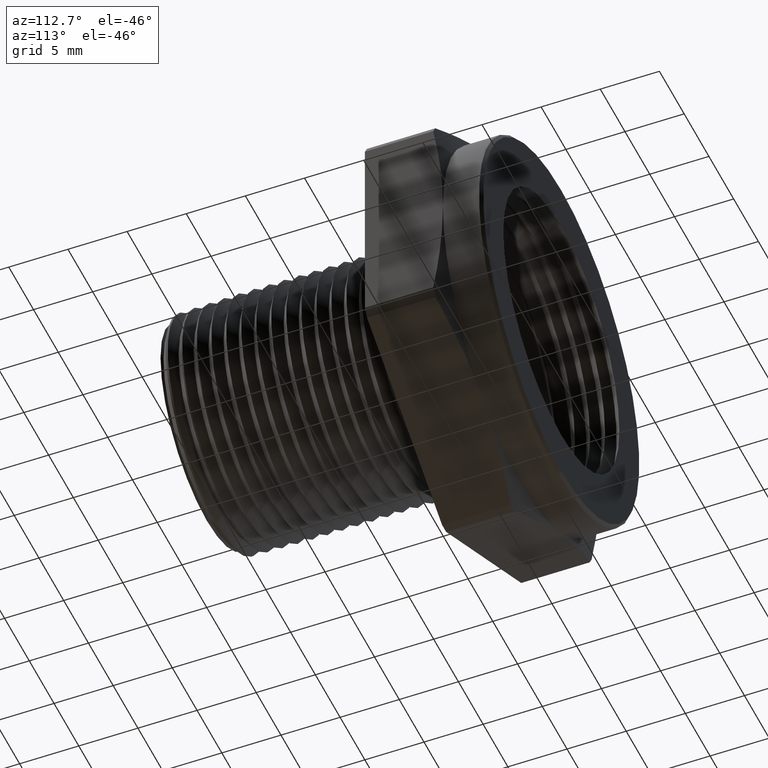
[diagram: clean part render]
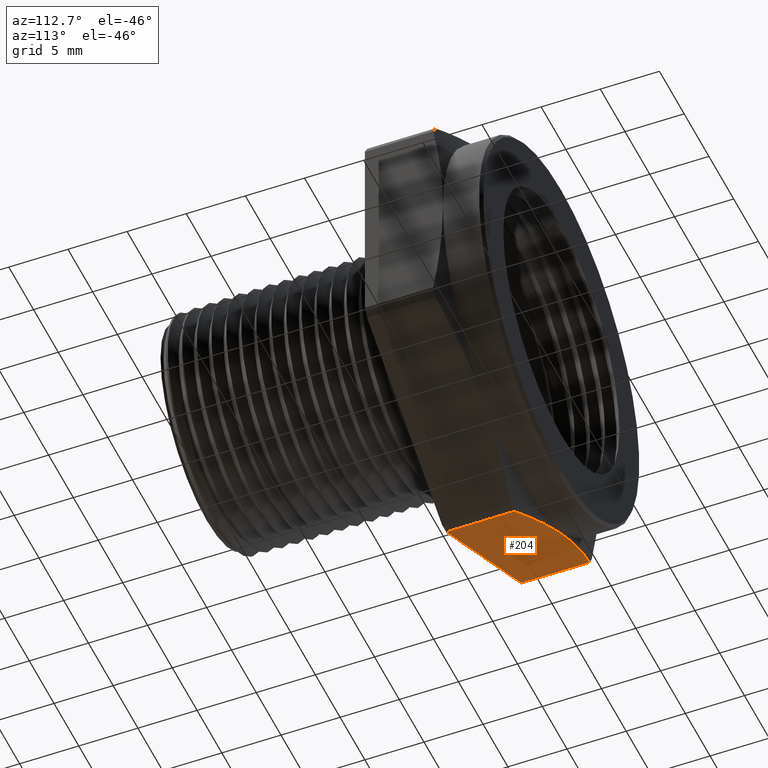
[diagram: same view with one face highlighted and labeled with its STEP entity id]
A machine part, auxiliary view. The second image highlights one B-rep face of the part: STEP entity #204.
In plain terms, the highlighted planar face has unit normal (-0.5, 0, -0.866).
Its self-contained STEP definition (entity closure, byte-faithful):
#115 = VERTEX_POINT ( 'NONE', #1240 ) ;
#117 = EDGE_CURVE ( 'NONE', #115, #118, #1239, .T. ) ;
#118 = VERTEX_POINT ( 'NONE', #1235 ) ;
#127 = ORIENTED_EDGE ( 'NONE', *, *, #128, .T. ) ;
#128 = EDGE_CURVE ( 'NONE', #115, #129, #1271, .T. ) ;
#129 = VERTEX_POINT ( 'NONE', #1270 ) ;
#130 = ORIENTED_EDGE ( 'NONE', *, *, #131, .T. ) ;
#131 = EDGE_CURVE ( 'NONE', #129, #544, #1263, .T. ) ;
#185 = ORIENTED_EDGE ( 'NONE', *, *, #551, .F. ) ;
#186 = ORIENTED_EDGE ( 'NONE', *, *, #187, .F. ) ;
#187 = EDGE_CURVE ( 'NONE', #118, #549, #1374, .T. ) ;
#204 = ADVANCED_FACE ( 'NONE', ( #1446 ), #1445, .T. ) ;
#205 = EDGE_LOOP ( 'NONE', ( #206, #127, #130, #185, #186 ) ) ;
#206 = ORIENTED_EDGE ( 'NONE', *, *, #117, .F. ) ;
#544 = VERTEX_POINT ( 'NONE', #1858 ) ;
#549 = VERTEX_POINT ( 'NONE', #1910 ) ;
#551 = EDGE_CURVE ( 'NONE', #549, #544, #1909, .T. ) ;
#1235 = CARTESIAN_POINT ( 'NONE',  ( -0.6136359489411817900, 0.7900000000000000400, -0.3731784588733055900 ) ) ;
#1236 = DIRECTION ( 'NONE',  ( -0.0000000000000000000, -1.000000000000000000, -0.0000000000000000000 ) ) ;
#1237 = VECTOR ( 'NONE', #1236, 39.37007874015748100 ) ;
#1238 = CARTESIAN_POINT ( 'NONE',  ( -0.6136359489411816700, 0.0000000000000000000, -0.3731784588733055300 ) ) ;
#1239 = LINE ( 'NONE', #1238, #1237 ) ;
#1240 = CARTESIAN_POINT ( 'NONE',  ( -0.6136359489411817900, 1.017497825337721200, -0.3731784588733055900 ) ) ;
#1257 = CARTESIAN_POINT ( 'NONE',  ( -0.01636405105881831600, 1.017497825337721200, -0.7180135498950869200 ) ) ;
#1258 = CARTESIAN_POINT ( 'NONE',  ( -0.06613670921568201600, 1.027541488170656600, -0.6892772923099382800 ) ) ;
#1259 = CARTESIAN_POINT ( 'NONE',  ( -0.1159093673725455600, 1.035645883142550800, -0.6605410347247897600 ) ) ;
#1260 = CARTESIAN_POINT ( 'NONE',  ( -0.2154546836862728800, 1.046689541038624100, -0.6030685195544931400 ) ) ;
#1261 = CARTESIAN_POINT ( 'NONE',  ( -0.2652273418431364500, 1.049599999999999900, -0.5743322619693445000 ) ) ;
#1262 = CARTESIAN_POINT ( 'NONE',  ( -0.3149999999999998900, 1.049600000000000100, -0.5455960043841960900 ) ) ;
#1263 = B_SPLINE_CURVE_WITH_KNOTS ( 'NONE', 3,
 ( #1262, #1261, #1260, #1259, #1258, #1257 ),
 .UNSPECIFIED., .F., .F.,
 ( 4, 2, 4 ),
 ( 0.008759042252060918900, 0.01313844790803754000, 0.01751785356401416200 ),
 .UNSPECIFIED. ) ;
#1264 = CARTESIAN_POINT ( 'NONE',  ( -0.3149999999999998900, 1.049600000000000100, -0.5455960043841960900 ) ) ;
#1265 = CARTESIAN_POINT ( 'NONE',  ( -0.3647726581568636600, 1.049600000000000100, -0.5168597467990478900 ) ) ;
#1266 = CARTESIAN_POINT ( 'NONE',  ( -0.4145453163137271000, 1.046689541038624300, -0.4881234892138993100 ) ) ;
#1267 = CARTESIAN_POINT ( 'NONE',  ( -0.5140906326274545800, 1.035645883142551000, -0.4306509740436025900 ) ) ;
#1268 = CARTESIAN_POINT ( 'NONE',  ( -0.5638632907843180700, 1.027541488170656200, -0.4019147164584540600 ) ) ;
#1269 = CARTESIAN_POINT ( 'NONE',  ( -0.6136359489411817900, 1.017497825337721200, -0.3731784588733055900 ) ) ;
#1270 = CARTESIAN_POINT ( 'NONE',  ( -0.3149999999999998900, 1.049600000000000100, -0.5455960043841960900 ) ) ;
#1271 = B_SPLINE_CURVE_WITH_KNOTS ( 'NONE', 3,
 ( #1269, #1268, #1267, #1266, #1265, #1264 ),
 .UNSPECIFIED., .F., .F.,
 ( 4, 2, 4 ),
 ( 2.309401076763871700E-007, 0.004379636596084297500, 0.008759042252060918900 ),
 .UNSPECIFIED. ) ;
#1368 = DIRECTION ( 'NONE',  ( 0.8660254037844386000, 0.0000000000000000000, -0.5000000000000000000 ) ) ;
#1369 = VECTOR ( 'NONE', #1368, 39.37007874015748900 ) ;
#1370 = CARTESIAN_POINT ( 'NONE',  ( -0.6300000000000000000, 0.7900000000000000400, -0.3637306695894641000 ) ) ;
#1374 = LINE ( 'NONE', #1370, #1369 ) ;
#1440 = DIRECTION ( 'NONE',  ( -0.8660254037844386000, 0.0000000000000000000, 0.5000000000000000000 ) ) ;
#1441 = DIRECTION ( 'NONE',  ( -0.5000000000000001100, 0.0000000000000000000, -0.8660254037844387100 ) ) ;
#1442 = AXIS2_PLACEMENT_3D ( 'NONE', #1444, #1441, #1440 ) ;
#1444 = CARTESIAN_POINT ( 'NONE',  ( -0.6300000000000000000, 1.179999999999999900, -0.3637306695894641000 ) ) ;
#1445 = PLANE ( 'NONE',  #1442 ) ;
#1446 = FACE_OUTER_BOUND ( 'NONE', #205, .T. ) ;
#1858 = CARTESIAN_POINT ( 'NONE',  ( -0.01636405105881831600, 1.017497825337721200, -0.7180135498950869200 ) ) ;
#1906 = DIRECTION ( 'NONE',  ( 0.0000000000000000000, 1.000000000000000000, 0.0000000000000000000 ) ) ;
#1907 = VECTOR ( 'NONE', #1906, 39.37007874015748100 ) ;
#1908 = CARTESIAN_POINT ( 'NONE',  ( -0.01636405105881813200, 0.0000000000000000000, -0.7180135498950869200 ) ) ;
#1909 = LINE ( 'NONE', #1908, #1907 ) ;
#1910 = CARTESIAN_POINT ( 'NONE',  ( -0.01636405105881802800, 0.7900000000000000400, -0.7180135498950870300 ) ) ;